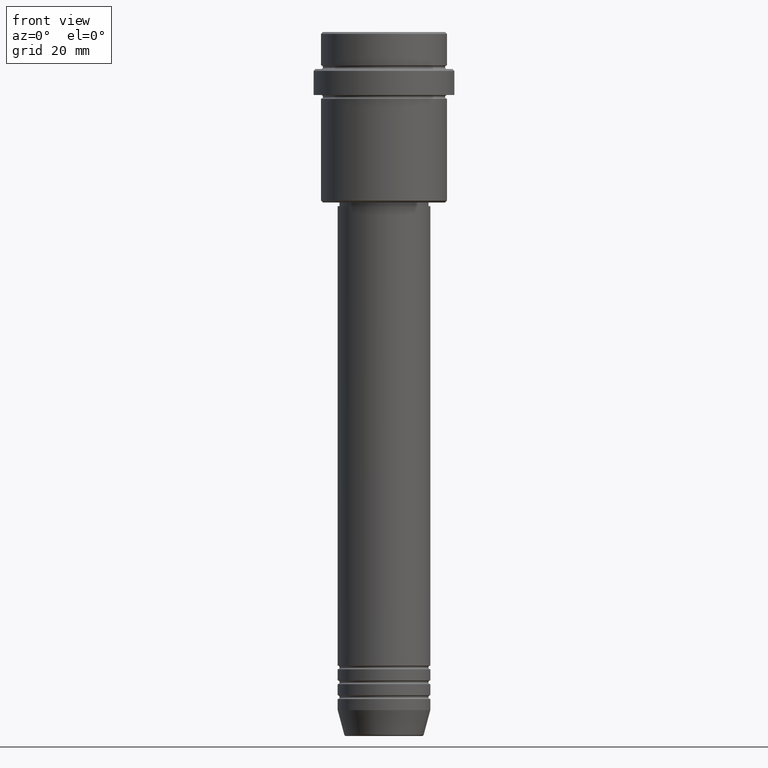
[diagram: clean part render]
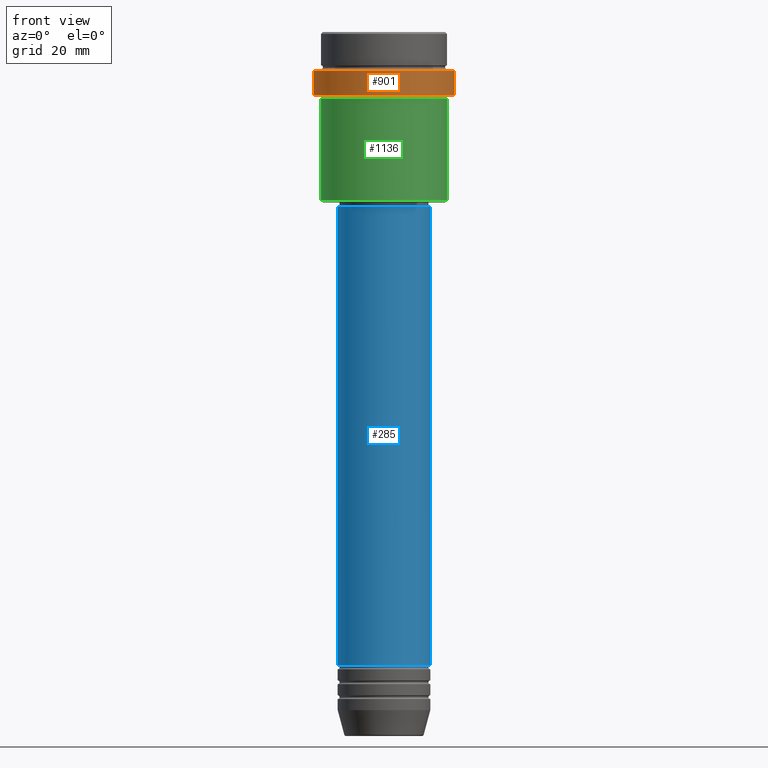
[diagram: same view with three faces highlighted in distinct colors, each labeled with its STEP entity id]
A machine part, front view with three faces highlighted in distinct colors.
Their STEP definitions:

[orange] entity #901 — the highlighted cylindrical surface (partial cylindrical patch) has radius 19 mm, axis along (-0, -0, 1).
#22 = DIRECTION ( 'NONE',  ( 0.000000000000000000, 0.000000000000000000, -1.000000000000000000 ) ) ;
#67 = CARTESIAN_POINT ( 'NONE',  ( -18.99999999999997868, 2.326828918379968604E-15, 0.000000000000000000 ) ) ;
#95 = VERTEX_POINT ( 'NONE', #981 ) ;
#106 = DIRECTION ( 'NONE',  ( -0.000000000000000000, -0.000000000000000000, 1.000000000000000000 ) ) ;
#207 = VECTOR ( 'NONE', #685, 1000.000000000000000 ) ;
#214 = ORIENTED_EDGE ( 'NONE', *, *, #669, .T. ) ;
#247 = DIRECTION ( 'NONE',  ( 1.000000000000000000, 0.000000000000000000, 0.000000000000000000 ) ) ;
#350 = CARTESIAN_POINT ( 'NONE',  ( -18.99999999999997868, 2.326828918379968604E-15, -17.00000000000000000 ) ) ;
#389 = CARTESIAN_POINT ( 'NONE',  ( -18.99999999999997868, 2.326828918379968604E-15, -10.49999999999998934 ) ) ;
#467 = CARTESIAN_POINT ( 'NONE',  ( 18.99999999999997868, 0.000000000000000000, -10.49999999999998934 ) ) ;
#525 = CIRCLE ( 'NONE', #1087, 18.99999999999997868 ) ;
#527 = VERTEX_POINT ( 'NONE', #389 ) ;
#536 = CARTESIAN_POINT ( 'NONE',  ( 18.99999999999997868, 0.000000000000000000, 0.000000000000000000 ) ) ;
#540 = CARTESIAN_POINT ( 'NONE',  ( 0.000000000000000000, 0.000000000000000000, -10.49999999999998934 ) ) ;
#601 = EDGE_LOOP ( 'NONE', ( #1086, #1314, #214, #1267 ) ) ;
#657 = CARTESIAN_POINT ( 'NONE',  ( 0.000000000000000000, 0.000000000000000000, 0.000000000000000000 ) ) ;
#669 = EDGE_CURVE ( 'NONE', #95, #1363, #1062, .T. ) ;
#677 = VECTOR ( 'NONE', #106, 1000.000000000000000 ) ;
#685 = DIRECTION ( 'NONE',  ( -0.000000000000000000, -0.000000000000000000, 1.000000000000000000 ) ) ;
#892 = CIRCLE ( 'NONE', #1383, 18.99999999999997868 ) ;
#901 = ADVANCED_FACE ( 'NONE', ( #1323 ), #1217, .T. ) ;
#981 = CARTESIAN_POINT ( 'NONE',  ( 18.99999999999997868, 0.000000000000000000, -17.00000000000000000 ) ) ;
#1002 = DIRECTION ( 'NONE',  ( 1.000000000000000000, 0.000000000000000000, 0.000000000000000000 ) ) ;
#1015 = LINE ( 'NONE', #67, #207 ) ;
#1062 = LINE ( 'NONE', #536, #677 ) ;
#1086 = ORIENTED_EDGE ( 'NONE', *, *, #1346, .F. ) ;
#1087 = AXIS2_PLACEMENT_3D ( 'NONE', #540, #22, #247 ) ;
#1113 = DIRECTION ( 'NONE',  ( -0.000000000000000000, -0.000000000000000000, 1.000000000000000000 ) ) ;
#1119 = CARTESIAN_POINT ( 'NONE',  ( 0.000000000000000000, 0.000000000000000000, -17.00000000000000000 ) ) ;
#1160 = EDGE_CURVE ( 'NONE', #1363, #527, #525, .T. ) ;
#1166 = EDGE_CURVE ( 'NONE', #1241, #95, #892, .T. ) ;
#1217 = CYLINDRICAL_SURFACE ( 'NONE', #1237, 18.99999999999997868 ) ;
#1221 = DIRECTION ( 'NONE',  ( -0.000000000000000000, -0.000000000000000000, 1.000000000000000000 ) ) ;
#1222 = DIRECTION ( 'NONE',  ( 1.000000000000000000, 0.000000000000000000, 0.000000000000000000 ) ) ;
#1237 = AXIS2_PLACEMENT_3D ( 'NONE', #657, #1113, #1222 ) ;
#1241 = VERTEX_POINT ( 'NONE', #350 ) ;
#1267 = ORIENTED_EDGE ( 'NONE', *, *, #1160, .T. ) ;
#1314 = ORIENTED_EDGE ( 'NONE', *, *, #1166, .T. ) ;
#1323 = FACE_OUTER_BOUND ( 'NONE', #601, .T. ) ;
#1346 = EDGE_CURVE ( 'NONE', #1241, #527, #1015, .T. ) ;
#1363 = VERTEX_POINT ( 'NONE', #467 ) ;
#1383 = AXIS2_PLACEMENT_3D ( 'NONE', #1119, #1221, #1002 ) ;

[blue] entity #285 — the highlighted cylindrical surface (partial cylindrical patch) has radius 12.5 mm, axis along (-0, -0, 1).
#42 = CARTESIAN_POINT ( 'NONE',  ( 0.000000000000000000, 0.000000000000000000, -47.00000000000000000 ) ) ;
#60 = LINE ( 'NONE', #734, #1153 ) ;
#100 = VECTOR ( 'NONE', #305, 1000.000000000000000 ) ;
#132 = AXIS2_PLACEMENT_3D ( 'NONE', #42, #472, #1018 ) ;
#166 = ORIENTED_EDGE ( 'NONE', *, *, #1131, .T. ) ;
#285 = ADVANCED_FACE ( 'NONE', ( #997 ), #1007, .T. ) ;
#305 = DIRECTION ( 'NONE',  ( -0.000000000000000000, -0.000000000000000000, 1.000000000000000000 ) ) ;
#309 = CARTESIAN_POINT ( 'NONE',  ( 12.50000000000000000, 0.000000000000000000, -170.9999999999999147 ) ) ;
#342 = DIRECTION ( 'NONE',  ( -0.000000000000000000, -0.000000000000000000, 1.000000000000000000 ) ) ;
#372 = EDGE_CURVE ( 'NONE', #624, #937, #434, .T. ) ;
#434 = CIRCLE ( 'NONE', #132, 12.50000000000000000 ) ;
#441 = VERTEX_POINT ( 'NONE', #1051 ) ;
#445 = ORIENTED_EDGE ( 'NONE', *, *, #974, .T. ) ;
#447 = DIRECTION ( 'NONE',  ( -0.000000000000000000, -0.000000000000000000, 1.000000000000000000 ) ) ;
#472 = DIRECTION ( 'NONE',  ( -0.000000000000000000, -0.000000000000000000, 1.000000000000000000 ) ) ;
#512 = DIRECTION ( 'NONE',  ( -0.000000000000000000, -0.000000000000000000, 1.000000000000000000 ) ) ;
#548 = DIRECTION ( 'NONE',  ( 1.000000000000000000, 0.000000000000000000, 0.000000000000000000 ) ) ;
#597 = EDGE_CURVE ( 'NONE', #441, #624, #1209, .T. ) ;
#624 = VERTEX_POINT ( 'NONE', #973 ) ;
#668 = ORIENTED_EDGE ( 'NONE', *, *, #597, .F. ) ;
#675 = AXIS2_PLACEMENT_3D ( 'NONE', #903, #342, #548 ) ;
#723 = CARTESIAN_POINT ( 'NONE',  ( 12.50000000000000000, 0.000000000000000000, -47.00000000000000000 ) ) ;
#734 = CARTESIAN_POINT ( 'NONE',  ( 12.50000000000000000, 0.000000000000000000, 0.000000000000000000 ) ) ;
#788 = EDGE_LOOP ( 'NONE', ( #668, #166, #445, #1370 ) ) ;
#803 = VERTEX_POINT ( 'NONE', #309 ) ;
#903 = CARTESIAN_POINT ( 'NONE',  ( 0.000000000000000000, 0.000000000000000000, 0.000000000000000000 ) ) ;
#937 = VERTEX_POINT ( 'NONE', #723 ) ;
#973 = CARTESIAN_POINT ( 'NONE',  ( -12.50000000000000000, 1.530808498934191521E-15, -47.00000000000000000 ) ) ;
#974 = EDGE_CURVE ( 'NONE', #803, #937, #60, .T. ) ;
#975 = CARTESIAN_POINT ( 'NONE',  ( 0.000000000000000000, 0.000000000000000000, -170.9999999999999147 ) ) ;
#989 = AXIS2_PLACEMENT_3D ( 'NONE', #975, #447, #1008 ) ;
#997 = FACE_OUTER_BOUND ( 'NONE', #788, .T. ) ;
#1007 = CYLINDRICAL_SURFACE ( 'NONE', #675, 12.50000000000000000 ) ;
#1008 = DIRECTION ( 'NONE',  ( 1.000000000000000000, 0.000000000000000000, 0.000000000000000000 ) ) ;
#1018 = DIRECTION ( 'NONE',  ( 1.000000000000000000, 0.000000000000000000, 0.000000000000000000 ) ) ;
#1051 = CARTESIAN_POINT ( 'NONE',  ( -12.50000000000000000, 1.530808498934191521E-15, -170.9999999999999147 ) ) ;
#1131 = EDGE_CURVE ( 'NONE', #441, #803, #1357, .T. ) ;
#1153 = VECTOR ( 'NONE', #512, 1000.000000000000000 ) ;
#1209 = LINE ( 'NONE', #1404, #100 ) ;
#1357 = CIRCLE ( 'NONE', #989, 12.50000000000000000 ) ;
#1370 = ORIENTED_EDGE ( 'NONE', *, *, #372, .F. ) ;
#1404 = CARTESIAN_POINT ( 'NONE',  ( -12.50000000000000000, 1.530808498934191521E-15, 0.000000000000000000 ) ) ;

[green] entity #1136 — the highlighted cylindrical surface (partial cylindrical patch) has radius 17 mm, axis along (-0, -0, 1).
#20 = DIRECTION ( 'NONE',  ( -0.000000000000000000, -0.000000000000000000, 1.000000000000000000 ) ) ;
#28 = VECTOR ( 'NONE', #20, 1000.000000000000000 ) ;
#37 = ORIENTED_EDGE ( 'NONE', *, *, #431, .F. ) ;
#43 = LINE ( 'NONE', #254, #28 ) ;
#49 = VECTOR ( 'NONE', #59, 1000.000000000000000 ) ;
#59 = DIRECTION ( 'NONE',  ( -0.000000000000000000, -0.000000000000000000, 1.000000000000000000 ) ) ;
#115 = CYLINDRICAL_SURFACE ( 'NONE', #1028, 16.99999999999998934 ) ;
#134 = CIRCLE ( 'NONE', #1381, 16.99999999999997868 ) ;
#140 = CARTESIAN_POINT ( 'NONE',  ( -16.99999999999998934, 2.081899558550499491E-15, -45.50000000000003553 ) ) ;
#147 = DIRECTION ( 'NONE',  ( 1.000000000000000000, 0.000000000000000000, 0.000000000000000000 ) ) ;
#163 = LINE ( 'NONE', #1029, #49 ) ;
#195 = CARTESIAN_POINT ( 'NONE',  ( 16.99999999999998934, 0.000000000000000000, -45.50000000000003553 ) ) ;
#254 = CARTESIAN_POINT ( 'NONE',  ( 16.99999999999998934, 0.000000000000000000, 0.000000000000000000 ) ) ;
#259 = CARTESIAN_POINT ( 'NONE',  ( 0.000000000000000000, 0.000000000000000000, -18.00000000000000711 ) ) ;
#340 = CIRCLE ( 'NONE', #500, 16.99999999999998934 ) ;
#431 = EDGE_CURVE ( 'NONE', #902, #747, #163, .T. ) ;
#500 = AXIS2_PLACEMENT_3D ( 'NONE', #858, #741, #1302 ) ;
#516 = CARTESIAN_POINT ( 'NONE',  ( 16.99999999999997868, 0.000000000000000000, -18.00000000000000711 ) ) ;
#557 = DIRECTION ( 'NONE',  ( -0.000000000000000000, -0.000000000000000000, 1.000000000000000000 ) ) ;
#606 = VERTEX_POINT ( 'NONE', #516 ) ;
#664 = DIRECTION ( 'NONE',  ( 1.000000000000000000, 0.000000000000000000, 0.000000000000000000 ) ) ;
#726 = ORIENTED_EDGE ( 'NONE', *, *, #793, .T. ) ;
#736 = VERTEX_POINT ( 'NONE', #195 ) ;
#741 = DIRECTION ( 'NONE',  ( -0.000000000000000000, -0.000000000000000000, 1.000000000000000000 ) ) ;
#747 = VERTEX_POINT ( 'NONE', #1395 ) ;
#772 = FACE_OUTER_BOUND ( 'NONE', #970, .T. ) ;
#793 = EDGE_CURVE ( 'NONE', #902, #736, #340, .T. ) ;
#835 = EDGE_CURVE ( 'NONE', #736, #606, #43, .T. ) ;
#852 = EDGE_CURVE ( 'NONE', #747, #606, #134, .T. ) ;
#858 = CARTESIAN_POINT ( 'NONE',  ( 0.000000000000000000, 0.000000000000000000, -45.50000000000003553 ) ) ;
#883 = CARTESIAN_POINT ( 'NONE',  ( 0.000000000000000000, 0.000000000000000000, 0.000000000000000000 ) ) ;
#902 = VERTEX_POINT ( 'NONE', #140 ) ;
#970 = EDGE_LOOP ( 'NONE', ( #37, #726, #1416, #1351 ) ) ;
#1028 = AXIS2_PLACEMENT_3D ( 'NONE', #883, #557, #664 ) ;
#1029 = CARTESIAN_POINT ( 'NONE',  ( -16.99999999999998934, 2.081899558550499491E-15, 0.000000000000000000 ) ) ;
#1136 = ADVANCED_FACE ( 'NONE', ( #772 ), #115, .T. ) ;
#1302 = DIRECTION ( 'NONE',  ( -1.000000000000000000, 0.000000000000000000, 0.000000000000000000 ) ) ;
#1351 = ORIENTED_EDGE ( 'NONE', *, *, #852, .F. ) ;
#1360 = DIRECTION ( 'NONE',  ( -0.000000000000000000, -0.000000000000000000, 1.000000000000000000 ) ) ;
#1381 = AXIS2_PLACEMENT_3D ( 'NONE', #259, #1360, #147 ) ;
#1395 = CARTESIAN_POINT ( 'NONE',  ( -16.99999999999997868, 2.081899558550498702E-15, -18.00000000000000711 ) ) ;
#1416 = ORIENTED_EDGE ( 'NONE', *, *, #835, .T. ) ;